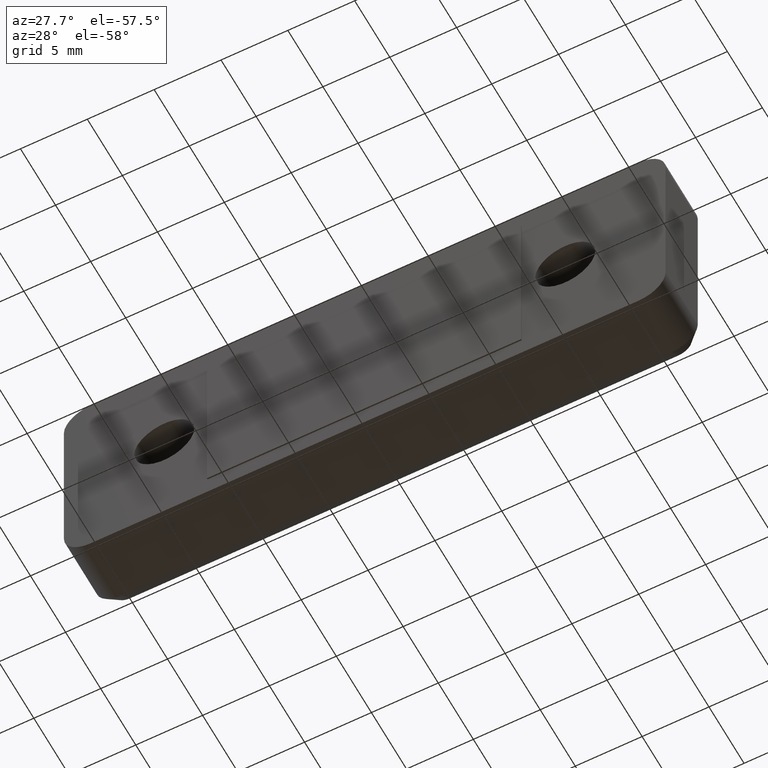
[diagram: clean part render]
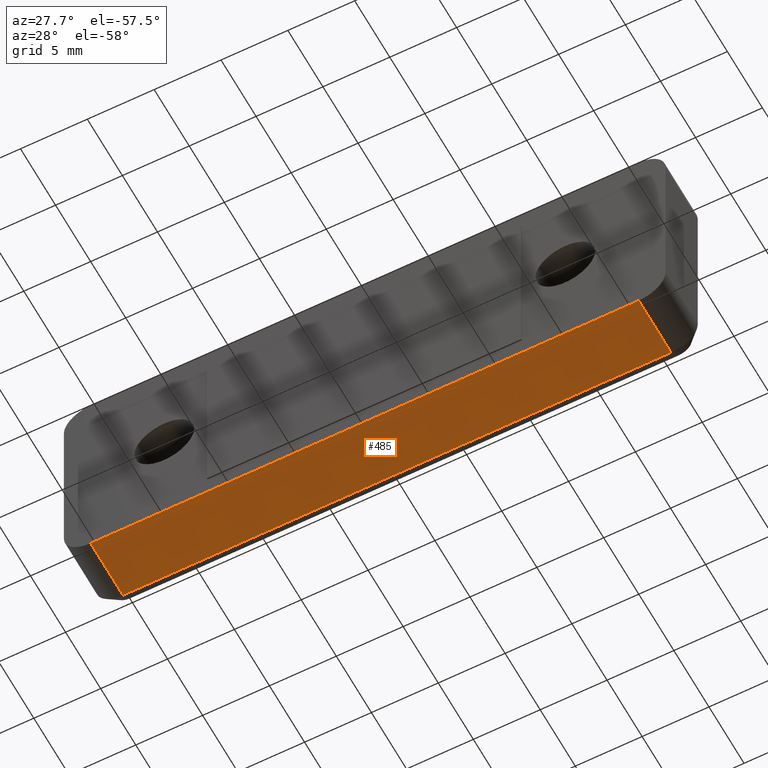
[diagram: same view with one face highlighted and labeled with its STEP entity id]
A machine part, auxiliary view. The second image highlights one B-rep face of the part: STEP entity #485.
In plain terms, the highlighted planar face has unit normal (0, 0, -1).
Its self-contained STEP definition (entity closure, byte-faithful):
#85=FACE_OUTER_BOUND('',#118,.T.);
#118=EDGE_LOOP('',(#404,#405,#406,#407));
#163=LINE('',#764,#203);
#176=LINE('',#797,#216);
#177=LINE('',#800,#217);
#178=LINE('',#801,#218);
#203=VECTOR('',#612,40.9999999923029);
#216=VECTOR('',#649,4.60000000011092);
#217=VECTOR('',#652,41.);
#218=VECTOR('',#653,4.6000000002);
#243=VERTEX_POINT('',#759);
#244=VERTEX_POINT('',#763);
#252=VERTEX_POINT('',#795);
#253=VERTEX_POINT('',#799);
#293=EDGE_CURVE('',#243,#244,#163,.T.);
#310=EDGE_CURVE('',#252,#243,#176,.T.);
#311=EDGE_CURVE('',#253,#252,#177,.T.);
#312=EDGE_CURVE('',#253,#244,#178,.T.);
#404=ORIENTED_EDGE('',*,*,#293,.F.);
#405=ORIENTED_EDGE('',*,*,#310,.F.);
#406=ORIENTED_EDGE('',*,*,#311,.F.);
#407=ORIENTED_EDGE('',*,*,#312,.T.);
#462=PLANE('',#530);
#485=ADVANCED_FACE('',(#85),#462,.T.);
#530=AXIS2_PLACEMENT_3D('',#798,#650,#651);
#612=DIRECTION('',(-1.,-1.791482951514E-12,-1.791477535792E-12));
#649=DIRECTION('',(-6.48197244633E-10,1.,5.94300713459299E-11));
#650=DIRECTION('center_axis',(0.,1.22464679914735E-16,-1.));
#651=DIRECTION('ref_axis',(1.,0.,0.));
#652=DIRECTION('',(1.,0.,0.));
#653=DIRECTION('',(1.187011069096E-9,1.,4.34625541840199E-11));
#759=CARTESIAN_POINT('',(20.4999999977629,4.60000000011092,-8.4999999998378));
#763=CARTESIAN_POINT('',(-20.49999999454,4.6000000002,-8.4999999998));
#764=CARTESIAN_POINT('',(20.49999999702,4.600000000273,-8.499999999727));
#795=CARTESIAN_POINT('',(20.5,0.,-8.5));
#797=CARTESIAN_POINT('',(20.5,0.,-8.5));
#798=CARTESIAN_POINT('Origin',(-22.5,5.6,-8.5));
#799=CARTESIAN_POINT('',(-20.5,0.,-8.5));
#800=CARTESIAN_POINT('',(-20.5,0.,-8.5));
#801=CARTESIAN_POINT('',(-20.5,0.,-8.5));